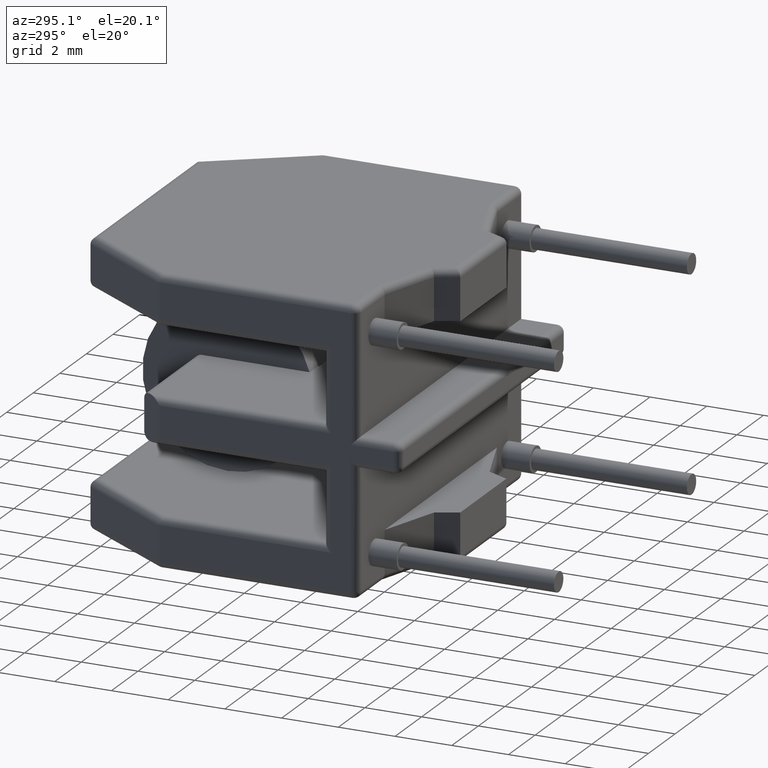
[diagram: clean part render]
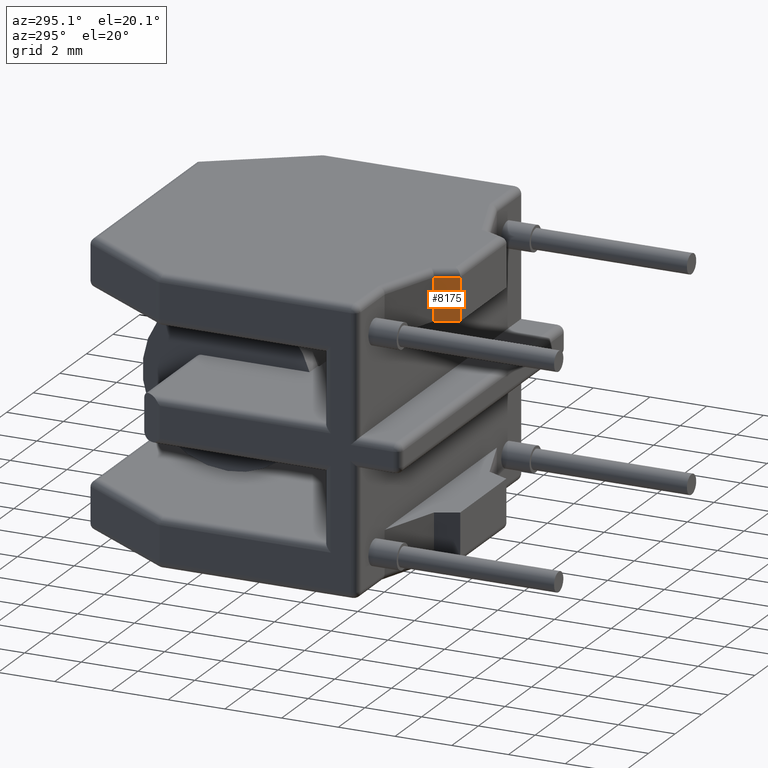
[diagram: same view with one face highlighted and labeled with its STEP entity id]
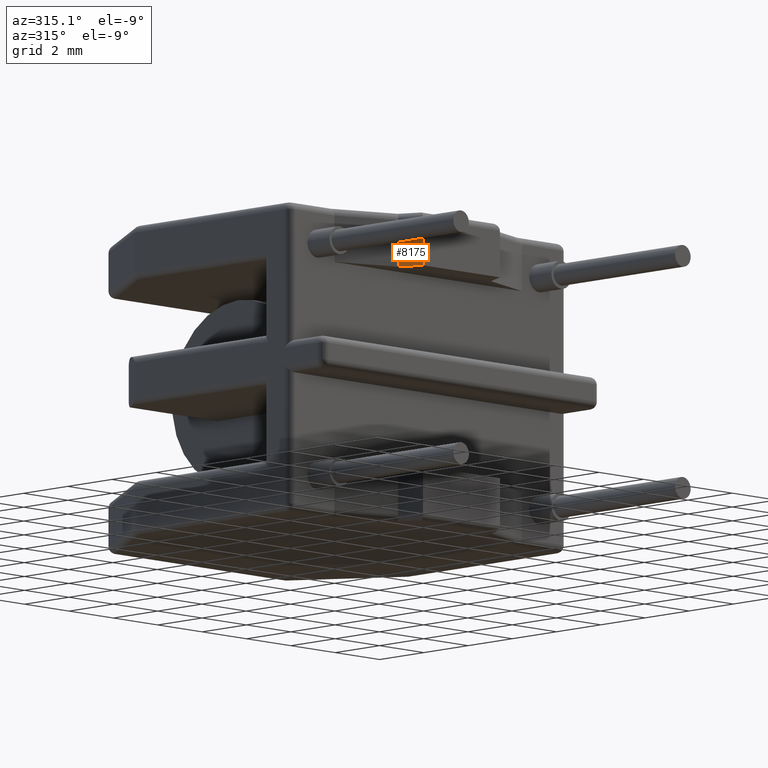
[diagram: same view with one face highlighted and labeled with its STEP entity id]
A machine part, auxiliary view. The second image highlights one B-rep face of the part: STEP entity #8175.
A second angle (auxiliary view) of the same face is appended — the face is thin or edge-on in the first view.
In plain terms, the highlighted planar face has unit normal (0.9032, 0.4292, -0).
Its self-contained STEP definition (entity closure, byte-faithful):
#1250 = ORIENTED_EDGE ( 'NONE', *, *, #7990, .T. ) ;
#1316 = VECTOR ( 'NONE', #3535, 1000.000000000000000 ) ;
#1320 = FACE_OUTER_BOUND ( 'NONE', #1597, .T. ) ;
#1436 = VERTEX_POINT ( 'NONE', #7460 ) ;
#1478 = EDGE_CURVE ( 'NONE', #1436, #1514, #5958, .T. ) ;
#1514 = VERTEX_POINT ( 'NONE', #4203 ) ;
#1597 = EDGE_LOOP ( 'NONE', ( #5920, #1250, #7121, #3344 ) ) ;
#1669 = VECTOR ( 'NONE', #5067, 1000.000000000000000 ) ;
#1810 = CARTESIAN_POINT ( 'NONE',  ( 4.155521785796272700, -0.7394436815796252600, -1.750000000000000000 ) ) ;
#1967 = DIRECTION ( 'NONE',  ( -0.4292490799734572400, 0.9031861532053846500, 0.0000000000000000000 ) ) ;
#2456 = CARTESIAN_POINT ( 'NONE',  ( 4.155521785796272700, -0.7394436815796252600, -0.2499999999999997800 ) ) ;
#2584 = AXIS2_PLACEMENT_3D ( 'NONE', #5085, #3147, #5174 ) ;
#2702 = CARTESIAN_POINT ( 'NONE',  ( 4.155521785796272700, -0.7394436815796252600, -1.750000000000000000 ) ) ;
#2774 = CARTESIAN_POINT ( 'NONE',  ( 4.155521785796272700, -0.7394436815796252600, -1.750000000000000000 ) ) ;
#2974 = CARTESIAN_POINT ( 'NONE',  ( 4.155521785796272700, -0.7394436815796252600, -0.2499999999999997800 ) ) ;
#3146 = VECTOR ( 'NONE', #1967, 1000.000000000000100 ) ;
#3147 = DIRECTION ( 'NONE',  ( 0.9031861532053846500, 0.4292490799734572400, -0.0000000000000000000 ) ) ;
#3176 = PLANE ( 'NONE',  #2584 ) ;
#3248 = LINE ( 'NONE', #2702, #3146 ) ;
#3344 = ORIENTED_EDGE ( 'NONE', *, *, #8334, .F. ) ;
#3535 = DIRECTION ( 'NONE',  ( 0.0000000000000000000, 0.0000000000000000000, 1.000000000000000000 ) ) ;
#4167 = DIRECTION ( 'NONE',  ( -0.4292490799734572400, 0.9031861532053846500, 0.0000000000000000000 ) ) ;
#4203 = CARTESIAN_POINT ( 'NONE',  ( 4.516984479606751500, -1.499999999999993100, -0.2499999999999997800 ) ) ;
#4211 = VERTEX_POINT ( 'NONE', #2456 ) ;
#5067 = DIRECTION ( 'NONE',  ( 0.0000000000000000000, 0.0000000000000000000, 1.000000000000000000 ) ) ;
#5085 = CARTESIAN_POINT ( 'NONE',  ( 4.155521785796272700, -0.7394436815796252600, -1.750000000000000000 ) ) ;
#5174 = DIRECTION ( 'NONE',  ( -0.4292490799734572400, 0.9031861532053846500, 0.0000000000000000000 ) ) ;
#5557 = CARTESIAN_POINT ( 'NONE',  ( 4.516984479606751500, -1.499999999999993100, -1.750000000000000000 ) ) ;
#5920 = ORIENTED_EDGE ( 'NONE', *, *, #1478, .T. ) ;
#5958 = LINE ( 'NONE', #5557, #1316 ) ;
#7110 = VERTEX_POINT ( 'NONE', #2774 ) ;
#7121 = ORIENTED_EDGE ( 'NONE', *, *, #7351, .F. ) ;
#7259 = VECTOR ( 'NONE', #4167, 1000.000000000000100 ) ;
#7351 = EDGE_CURVE ( 'NONE', #7110, #4211, #7838, .T. ) ;
#7460 = CARTESIAN_POINT ( 'NONE',  ( 4.516984479606751500, -1.499999999999993100, -1.750000000000000000 ) ) ;
#7838 = LINE ( 'NONE', #1810, #1669 ) ;
#7990 = EDGE_CURVE ( 'NONE', #1514, #4211, #8056, .T. ) ;
#8056 = LINE ( 'NONE', #2974, #7259 ) ;
#8175 = ADVANCED_FACE ( 'NONE', ( #1320 ), #3176, .F. ) ;
#8334 = EDGE_CURVE ( 'NONE', #1436, #7110, #3248, .T. ) ;